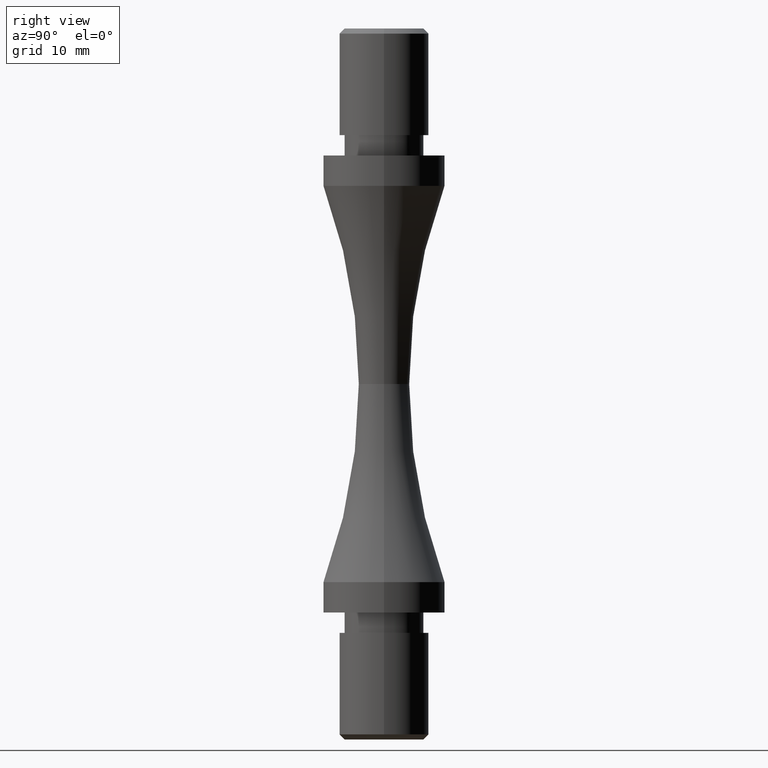
[diagram: clean part render]
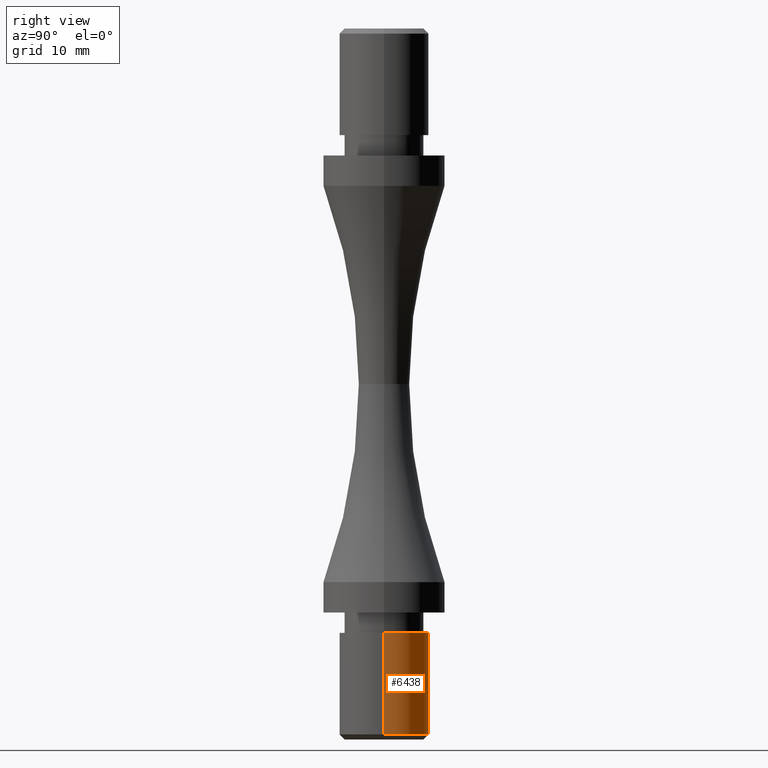
[diagram: same view with one face highlighted and labeled with its STEP entity id]
A machine part, right view. The second image highlights one B-rep face of the part: STEP entity #6438.
In plain terms, the highlighted cylindrical surface (partial cylindrical patch) has radius 4.4 mm, axis along (-0, -0, -1).
Its self-contained STEP definition (entity closure, byte-faithful):
#573 = CIRCLE ( 'NONE', #7581, 4.400000000000241940 ) ;
#1534 = DIRECTION ( 'NONE',  ( -1.000000000000000000, 0.000000000000000000, 0.000000000000000000 ) ) ;
#1733 = CARTESIAN_POINT ( 'NONE',  ( 0.000000000000000000, -5.635030204184775702E-15, -34.49999999999999289 ) ) ;
#1777 = DIRECTION ( 'NONE',  ( 0.000000000000000000, 0.000000000000000000, 1.000000000000000000 ) ) ;
#1795 = CARTESIAN_POINT ( 'NONE',  ( 4.400000000000241940, -5.096185612559910915E-15, -22.50000000000000000 ) ) ;
#2061 = DIRECTION ( 'NONE',  ( -0.000000000000000000, -0.000000000000000000, -1.000000000000000000 ) ) ;
#3659 = CARTESIAN_POINT ( 'NONE',  ( 4.400000000000241940, -5.096185612559910915E-15, -34.49999999999999289 ) ) ;
#4147 = ORIENTED_EDGE ( 'NONE', *, *, #9187, .T. ) ;
#4821 = CARTESIAN_POINT ( 'NONE',  ( -4.400000000000241940, -5.635030204184775702E-15, -34.49999999999999289 ) ) ;
#5019 = EDGE_CURVE ( 'NONE', #12538, #10146, #12265, .T. ) ;
#5061 = ORIENTED_EDGE ( 'NONE', *, *, #9427, .T. ) ;
#5119 = LINE ( 'NONE', #1795, #12776 ) ;
#5451 = DIRECTION ( 'NONE',  ( -0.000000000000000000, -0.000000000000000000, -1.000000000000000000 ) ) ;
#6438 = ADVANCED_FACE ( 'NONE', ( #13767 ), #9953, .T. ) ;
#6893 = CARTESIAN_POINT ( 'NONE',  ( 0.000000000000000000, -5.635030204184775702E-15, -22.50000000000000000 ) ) ;
#6951 = AXIS2_PLACEMENT_3D ( 'NONE', #6893, #2061, #11821 ) ;
#7581 = AXIS2_PLACEMENT_3D ( 'NONE', #1733, #1777, #10295 ) ;
#8157 = EDGE_CURVE ( 'NONE', #12538, #9967, #9346, .T. ) ;
#8275 = VECTOR ( 'NONE', #12839, 1000.000000000000000 ) ;
#8520 = ORIENTED_EDGE ( 'NONE', *, *, #8157, .T. ) ;
#8875 = DIRECTION ( 'NONE',  ( -0.000000000000000000, -0.000000000000000000, -1.000000000000000000 ) ) ;
#9187 = EDGE_CURVE ( 'NONE', #9967, #14629, #5119, .T. ) ;
#9346 = CIRCLE ( 'NONE', #14824, 4.400000000000200195 ) ;
#9427 = EDGE_CURVE ( 'NONE', #14629, #10146, #573, .T. ) ;
#9953 = CYLINDRICAL_SURFACE ( 'NONE', #6951, 4.400000000000241940 ) ;
#9967 = VERTEX_POINT ( 'NONE', #14134 ) ;
#10146 = VERTEX_POINT ( 'NONE', #4821 ) ;
#10295 = DIRECTION ( 'NONE',  ( -1.000000000000000000, 0.000000000000000000, 0.000000000000000000 ) ) ;
#11821 = DIRECTION ( 'NONE',  ( -1.000000000000000000, 0.000000000000000000, 0.000000000000000000 ) ) ;
#11927 = CARTESIAN_POINT ( 'NONE',  ( 0.000000000000000000, -5.635030204184775702E-15, -24.49999999999996447 ) ) ;
#12265 = LINE ( 'NONE', #14015, #8275 ) ;
#12372 = CARTESIAN_POINT ( 'NONE',  ( -4.400000000000200195, -5.635030204184775702E-15, -24.49999999999996447 ) ) ;
#12382 = ORIENTED_EDGE ( 'NONE', *, *, #5019, .F. ) ;
#12538 = VERTEX_POINT ( 'NONE', #12372 ) ;
#12776 = VECTOR ( 'NONE', #5451, 1000.000000000000000 ) ;
#12839 = DIRECTION ( 'NONE',  ( -0.000000000000000000, -0.000000000000000000, -1.000000000000000000 ) ) ;
#13767 = FACE_OUTER_BOUND ( 'NONE', #15234, .T. ) ;
#14015 = CARTESIAN_POINT ( 'NONE',  ( -4.400000000000241940, -5.635030204184775702E-15, -22.50000000000000000 ) ) ;
#14134 = CARTESIAN_POINT ( 'NONE',  ( 4.400000000000200195, -5.096185612559913282E-15, -24.49999999999996447 ) ) ;
#14629 = VERTEX_POINT ( 'NONE', #3659 ) ;
#14824 = AXIS2_PLACEMENT_3D ( 'NONE', #11927, #8875, #1534 ) ;
#15234 = EDGE_LOOP ( 'NONE', ( #8520, #4147, #5061, #12382 ) ) ;